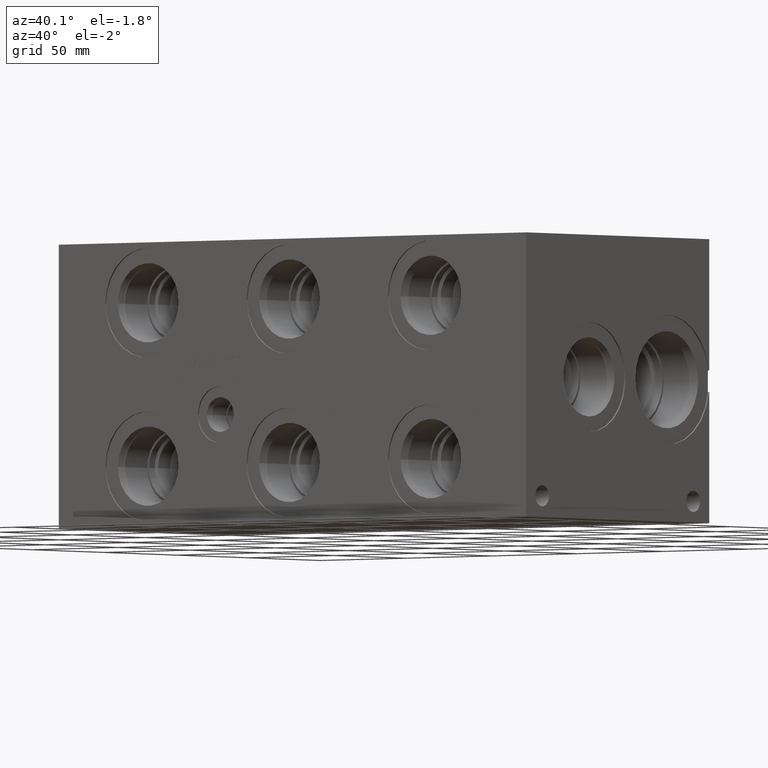
[diagram: clean part render]
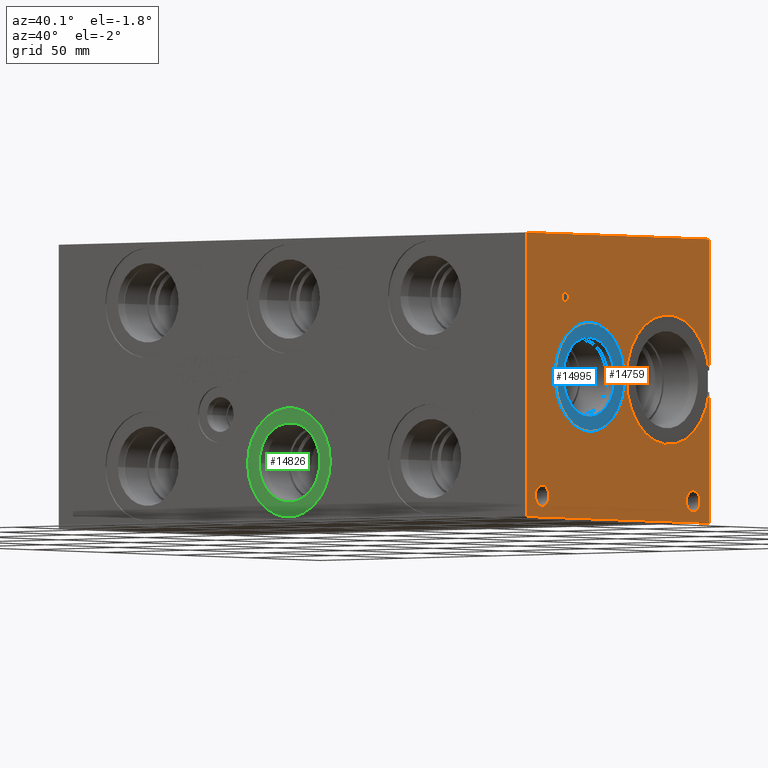
[diagram: same view with three faces highlighted in distinct colors, each labeled with its STEP entity id]
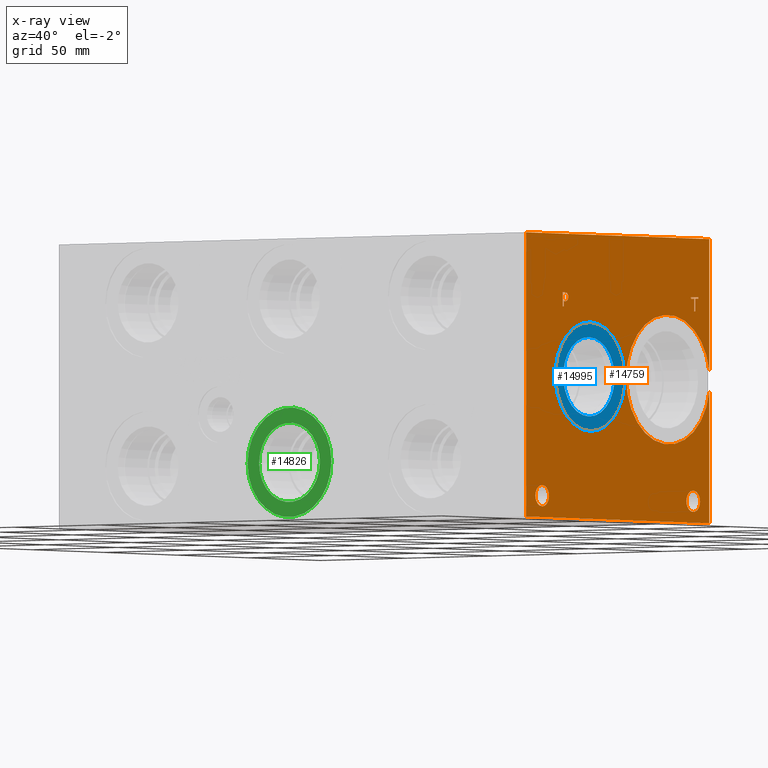
[diagram: x-ray of the same camera — body ghosted, the three highlighted faces saturated]
A machine part, auxiliary view with three faces highlighted in distinct colors.
The next image is the same camera in x-ray (body ghosted, the three faces saturated) — at least one of them is partly hidden behind the body in this view.
Their STEP definitions:

[orange] entity #14759 — the highlighted planar face has unit normal (1, 0, 0).
#432=CIRCLE('',#15385,28.9814);
#433=CIRCLE('',#15386,24.4856);
#434=CIRCLE('',#15387,24.4856);
#435=CIRCLE('',#15388,4.7625);
#436=CIRCLE('',#15389,4.7625);
#437=CIRCLE('',#15390,4.7625);
#438=CIRCLE('',#15391,4.7625);
#1204=B_SPLINE_CURVE_WITH_KNOTS('',2,(#24708,#24709,#24710,#24711),
 .UNSPECIFIED.,.F.,.F.,(3,1,3),(0.,1.,2.),.UNSPECIFIED.);
#1206=B_SPLINE_CURVE_WITH_KNOTS('',2,(#24729,#24730,#24731,#24732),
 .UNSPECIFIED.,.F.,.F.,(3,1,3),(0.,1.,2.),.UNSPECIFIED.);
#1208=B_SPLINE_CURVE_WITH_KNOTS('',2,(#24778,#24779,#24780,#24781),
 .UNSPECIFIED.,.F.,.F.,(3,1,3),(0.,1.,2.),.UNSPECIFIED.);
#1210=B_SPLINE_CURVE_WITH_KNOTS('',2,(#24796,#24797,#24798,#24799),
 .UNSPECIFIED.,.F.,.F.,(3,1,3),(0.,1.,2.),.UNSPECIFIED.);
#1269=FACE_BOUND('',#2700,.T.);
#1270=FACE_BOUND('',#2701,.T.);
#1271=FACE_BOUND('',#2702,.T.);
#1272=FACE_BOUND('',#2703,.T.);
#1273=FACE_BOUND('',#2704,.T.);
#1858=FACE_OUTER_BOUND('',#2699,.T.);
#2699=EDGE_LOOP('',(#11982,#11983,#11984,#11985,#11986,#11987));
#2700=EDGE_LOOP('',(#11988,#11989));
#2701=EDGE_LOOP('',(#11990,#11991));
#2702=EDGE_LOOP('',(#11992,#11993));
#2703=EDGE_LOOP('',(#11994,#11995,#11996,#11997,#11998,#11999,#12000,#12001));
#2704=EDGE_LOOP('',(#12002,#12003,#12004,#12005,#12006,#12007,#12008,#12009,
#12010));
#3074=LINE('',#19416,#4365);
#4062=LINE('',#24741,#5353);
#4065=LINE('',#24747,#5356);
#4068=LINE('',#24753,#5359);
#4071=LINE('',#24759,#5362);
#4074=LINE('',#24765,#5365);
#4078=LINE('',#24810,#5369);
#4079=LINE('',#24811,#5370);
#4080=LINE('',#24813,#5371);
#4081=LINE('',#24814,#5372);
#4082=LINE('',#24829,#5373);
#4083=LINE('',#24831,#5374);
#4084=LINE('',#24833,#5375);
#4085=LINE('',#24835,#5376);
#4086=LINE('',#24837,#5377);
#4087=LINE('',#24839,#5378);
#4088=LINE('',#24841,#5379);
#4089=LINE('',#24842,#5380);
#4365=VECTOR('',#16106,10.);
#5353=VECTOR('',#17744,10.);
#5356=VECTOR('',#17749,10.);
#5359=VECTOR('',#17754,10.);
#5362=VECTOR('',#17759,10.);
#5365=VECTOR('',#17764,10.);
#5369=VECTOR('',#17774,10.);
#5370=VECTOR('',#17775,10.);
#5371=VECTOR('',#17776,10.);
#5372=VECTOR('',#17777,10.);
#5373=VECTOR('',#17790,10.);
#5374=VECTOR('',#17791,10.);
#5375=VECTOR('',#17792,10.);
#5376=VECTOR('',#17793,10.);
#5377=VECTOR('',#17794,10.);
#5378=VECTOR('',#17795,10.);
#5379=VECTOR('',#17796,10.);
#5380=VECTOR('',#17797,10.);
#5645=VERTEX_POINT('',#19413);
#5646=VERTEX_POINT('',#19415);
#6580=VERTEX_POINT('',#24706);
#6581=VERTEX_POINT('',#24707);
#6584=VERTEX_POINT('',#24728);
#6586=VERTEX_POINT('',#24740);
#6588=VERTEX_POINT('',#24746);
#6590=VERTEX_POINT('',#24752);
#6592=VERTEX_POINT('',#24758);
#6594=VERTEX_POINT('',#24764);
#6596=VERTEX_POINT('',#24777);
#6598=VERTEX_POINT('',#24806);
#6599=VERTEX_POINT('',#24807);
#6600=VERTEX_POINT('',#24809);
#6601=VERTEX_POINT('',#24812);
#6602=VERTEX_POINT('',#24815);
#6603=VERTEX_POINT('',#24816);
#6604=VERTEX_POINT('',#24819);
#6605=VERTEX_POINT('',#24820);
#6606=VERTEX_POINT('',#24823);
#6607=VERTEX_POINT('',#24824);
#6608=VERTEX_POINT('',#24827);
#6609=VERTEX_POINT('',#24828);
#6610=VERTEX_POINT('',#24830);
#6611=VERTEX_POINT('',#24832);
#6612=VERTEX_POINT('',#24834);
#6613=VERTEX_POINT('',#24836);
#6614=VERTEX_POINT('',#24838);
#6615=VERTEX_POINT('',#24840);
#7096=EDGE_CURVE('',#5645,#5646,#3074,.T.);
#8482=EDGE_CURVE('',#6580,#6581,#1204,.T.);
#8486=EDGE_CURVE('',#6584,#6580,#1206,.T.);
#8489=EDGE_CURVE('',#6586,#6584,#4062,.T.);
#8492=EDGE_CURVE('',#6588,#6586,#4065,.T.);
#8495=EDGE_CURVE('',#6590,#6588,#4068,.T.);
#8498=EDGE_CURVE('',#6592,#6590,#4071,.T.);
#8501=EDGE_CURVE('',#6594,#6592,#4074,.T.);
#8504=EDGE_CURVE('',#6596,#6594,#1208,.T.);
#8507=EDGE_CURVE('',#6581,#6596,#1210,.T.);
#8509=EDGE_CURVE('',#6598,#6599,#432,.T.);
#8510=EDGE_CURVE('',#6599,#6600,#4078,.T.);
#8511=EDGE_CURVE('',#5646,#6600,#4079,.T.);
#8512=EDGE_CURVE('',#5645,#6601,#4080,.T.);
#8513=EDGE_CURVE('',#6601,#6598,#4081,.T.);
#8514=EDGE_CURVE('',#6602,#6603,#433,.T.);
#8515=EDGE_CURVE('',#6603,#6602,#434,.T.);
#8516=EDGE_CURVE('',#6604,#6605,#435,.T.);
#8517=EDGE_CURVE('',#6605,#6604,#436,.T.);
#8518=EDGE_CURVE('',#6606,#6607,#437,.T.);
#8519=EDGE_CURVE('',#6607,#6606,#438,.T.);
#8520=EDGE_CURVE('',#6608,#6609,#4082,.T.);
#8521=EDGE_CURVE('',#6609,#6610,#4083,.T.);
#8522=EDGE_CURVE('',#6610,#6611,#4084,.T.);
#8523=EDGE_CURVE('',#6611,#6612,#4085,.T.);
#8524=EDGE_CURVE('',#6612,#6613,#4086,.T.);
#8525=EDGE_CURVE('',#6613,#6614,#4087,.T.);
#8526=EDGE_CURVE('',#6614,#6615,#4088,.T.);
#8527=EDGE_CURVE('',#6615,#6608,#4089,.T.);
#11982=ORIENTED_EDGE('',*,*,#8509,.T.);
#11983=ORIENTED_EDGE('',*,*,#8510,.T.);
#11984=ORIENTED_EDGE('',*,*,#8511,.F.);
#11985=ORIENTED_EDGE('',*,*,#7096,.F.);
#11986=ORIENTED_EDGE('',*,*,#8512,.T.);
#11987=ORIENTED_EDGE('',*,*,#8513,.T.);
#11988=ORIENTED_EDGE('',*,*,#8514,.T.);
#11989=ORIENTED_EDGE('',*,*,#8515,.T.);
#11990=ORIENTED_EDGE('',*,*,#8516,.T.);
#11991=ORIENTED_EDGE('',*,*,#8517,.T.);
#11992=ORIENTED_EDGE('',*,*,#8518,.T.);
#11993=ORIENTED_EDGE('',*,*,#8519,.T.);
#11994=ORIENTED_EDGE('',*,*,#8520,.T.);
#11995=ORIENTED_EDGE('',*,*,#8521,.T.);
#11996=ORIENTED_EDGE('',*,*,#8522,.T.);
#11997=ORIENTED_EDGE('',*,*,#8523,.T.);
#11998=ORIENTED_EDGE('',*,*,#8524,.T.);
#11999=ORIENTED_EDGE('',*,*,#8525,.T.);
#12000=ORIENTED_EDGE('',*,*,#8526,.T.);
#12001=ORIENTED_EDGE('',*,*,#8527,.T.);
#12002=ORIENTED_EDGE('',*,*,#8482,.T.);
#12003=ORIENTED_EDGE('',*,*,#8507,.T.);
#12004=ORIENTED_EDGE('',*,*,#8504,.T.);
#12005=ORIENTED_EDGE('',*,*,#8501,.T.);
#12006=ORIENTED_EDGE('',*,*,#8498,.T.);
#12007=ORIENTED_EDGE('',*,*,#8495,.T.);
#12008=ORIENTED_EDGE('',*,*,#8492,.T.);
#12009=ORIENTED_EDGE('',*,*,#8489,.T.);
#12010=ORIENTED_EDGE('',*,*,#8486,.T.);
#13660=PLANE('',#15384);
#14759=ADVANCED_FACE('',(#1858,#1269,#1270,#1271,#1272,#1273),#13660,.T.);
#15384=AXIS2_PLACEMENT_3D('',#24805,#17770,#17771);
#15385=AXIS2_PLACEMENT_3D('',#24808,#17772,#17773);
#15386=AXIS2_PLACEMENT_3D('',#24817,#17778,#17779);
#15387=AXIS2_PLACEMENT_3D('',#24818,#17780,#17781);
#15388=AXIS2_PLACEMENT_3D('',#24821,#17782,#17783);
#15389=AXIS2_PLACEMENT_3D('',#24822,#17784,#17785);
#15390=AXIS2_PLACEMENT_3D('',#24825,#17786,#17787);
#15391=AXIS2_PLACEMENT_3D('',#24826,#17788,#17789);
#16106=DIRECTION('',(0.,0.,1.));
#17744=DIRECTION('',(0.,1.,0.));
#17749=DIRECTION('',(0.,0.,1.));
#17754=DIRECTION('',(0.,-1.,0.));
#17759=DIRECTION('',(0.,0.,-1.));
#17764=DIRECTION('',(0.,-1.,0.));
#17770=DIRECTION('center_axis',(1.,0.,0.));
#17771=DIRECTION('ref_axis',(0.,1.,0.));
#17772=DIRECTION('center_axis',(-1.,0.,0.));
#17773=DIRECTION('ref_axis',(0.,1.,0.));
#17774=DIRECTION('',(0.,0.,1.));
#17775=DIRECTION('',(0.,1.,0.));
#17776=DIRECTION('',(0.,1.,0.));
#17777=DIRECTION('',(0.,0.,1.));
#17778=DIRECTION('center_axis',(-1.,0.,0.));
#17779=DIRECTION('ref_axis',(0.,0.,-1.));
#17780=DIRECTION('center_axis',(-1.,0.,0.));
#17781=DIRECTION('ref_axis',(0.,0.,-1.));
#17782=DIRECTION('center_axis',(-1.,0.,0.));
#17783=DIRECTION('ref_axis',(0.,1.,0.));
#17784=DIRECTION('center_axis',(-1.,0.,0.));
#17785=DIRECTION('ref_axis',(0.,1.,0.));
#17786=DIRECTION('center_axis',(-1.,0.,0.));
#17787=DIRECTION('ref_axis',(0.,1.,0.));
#17788=DIRECTION('center_axis',(-1.,0.,0.));
#17789=DIRECTION('ref_axis',(0.,1.,0.));
#17790=DIRECTION('',(0.,-1.,0.));
#17791=DIRECTION('',(0.,0.,1.));
#17792=DIRECTION('',(0.,-1.,0.));
#17793=DIRECTION('',(0.,0.,1.));
#17794=DIRECTION('',(0.,1.,0.));
#17795=DIRECTION('',(0.,0.,-1.));
#17796=DIRECTION('',(0.,-1.,0.));
#17797=DIRECTION('',(0.,0.,-1.));
#19413=CARTESIAN_POINT('',(273.05,0.,0.));
#19415=CARTESIAN_POINT('',(273.05,0.,127.));
#19416=CARTESIAN_POINT('',(273.05,0.,0.));
#24706=CARTESIAN_POINT('',(273.05,28.5068172023594,100.410018143971));
#24707=CARTESIAN_POINT('',(273.05,29.263259654532,98.8919873726039));
#24708=CARTESIAN_POINT('Ctrl Pts',(273.05,28.5068172023594,100.410018143971));
#24709=CARTESIAN_POINT('Ctrl Pts',(273.05,28.8618820268486,100.168162393956));
#24710=CARTESIAN_POINT('Ctrl Pts',(273.05,29.263259654532,99.4220116758269));
#24711=CARTESIAN_POINT('Ctrl Pts',(273.05,29.263259654532,98.8919873726039));
#24728=CARTESIAN_POINT('',(273.05,26.8447021543883,100.806249904633));
#24729=CARTESIAN_POINT('Ctrl Pts',(273.05,26.8447021543883,100.806249904633));
#24730=CARTESIAN_POINT('Ctrl Pts',(273.05,27.4107475267624,100.806249904633));
#24731=CARTESIAN_POINT('Ctrl Pts',(273.05,28.203211048086,100.620998691856));
#24732=CARTESIAN_POINT('Ctrl Pts',(273.05,28.5068172023594,100.410018143971));
#24740=CARTESIAN_POINT('',(273.05,25.2494833776978,100.806249904633));
#24741=CARTESIAN_POINT('',(273.05,12.6247416888489,100.806249904633));
#24746=CARTESIAN_POINT('',(273.05,25.2494833776978,94.45625));
#24747=CARTESIAN_POINT('',(273.05,25.2494833776978,47.228125));
#24752=CARTESIAN_POINT('',(273.05,26.0934055692373,94.45625));
#24753=CARTESIAN_POINT('',(273.05,13.0467027846186,94.45625));
#24758=CARTESIAN_POINT('',(273.05,26.0934055692373,96.8233488299279));
#24759=CARTESIAN_POINT('',(273.05,26.0934055692373,48.4116744149639));
#24764=CARTESIAN_POINT('',(273.05,26.8086810852372,96.8233488299279));
#24765=CARTESIAN_POINT('',(273.05,13.4043405426186,96.8233488299279));
#24777=CARTESIAN_POINT('',(273.05,28.7075060162011,97.4820198086904));
#24778=CARTESIAN_POINT('Ctrl Pts',(273.05,28.7075060162011,97.4820198086904));
#24779=CARTESIAN_POINT('Ctrl Pts',(273.05,28.3781705268198,97.1578301863307));
#24780=CARTESIAN_POINT('Ctrl Pts',(273.05,27.4879355320861,96.8233488299279));
#24781=CARTESIAN_POINT('Ctrl Pts',(273.05,26.8086810852372,96.8233488299279));
#24796=CARTESIAN_POINT('Ctrl Pts',(273.05,29.263259654532,98.8919873726039));
#24797=CARTESIAN_POINT('Ctrl Pts',(273.05,29.263259654532,98.4803180108774));
#24798=CARTESIAN_POINT('Ctrl Pts',(273.05,28.9699452343018,97.7393131597695));
#24799=CARTESIAN_POINT('Ctrl Pts',(273.05,28.7075060162011,97.4820198086904));
#24805=CARTESIAN_POINT('Origin',(273.05,0.,0.));
#24806=CARTESIAN_POINT('',(273.05,127.,58.6635838723286));
#24807=CARTESIAN_POINT('',(273.05,127.,68.3364161276714));
#24808=CARTESIAN_POINT('Origin',(273.05,98.425,63.5));
#24809=CARTESIAN_POINT('',(273.05,127.,127.));
#24810=CARTESIAN_POINT('',(273.05,127.,0.));
#24811=CARTESIAN_POINT('',(273.05,0.,127.));
#24812=CARTESIAN_POINT('',(273.05,127.,0.));
#24813=CARTESIAN_POINT('',(273.05,0.,0.));
#24814=CARTESIAN_POINT('',(273.05,127.,0.));
#24815=CARTESIAN_POINT('',(273.05,44.45,39.0144));
#24816=CARTESIAN_POINT('',(273.05,44.45,87.9856));
#24817=CARTESIAN_POINT('Origin',(273.05,44.45,63.5));
#24818=CARTESIAN_POINT('Origin',(273.05,44.45,63.5));
#24819=CARTESIAN_POINT('',(273.05,120.6627,9.525));
#24820=CARTESIAN_POINT('',(273.05,111.1377,9.525));
#24821=CARTESIAN_POINT('Origin',(273.05,115.9002,9.525));
#24822=CARTESIAN_POINT('Origin',(273.05,115.9002,9.525));
#24823=CARTESIAN_POINT('',(273.05,15.8877,9.525));
#24824=CARTESIAN_POINT('',(273.05,6.3627,9.525));
#24825=CARTESIAN_POINT('Origin',(273.05,11.1252,9.525));
#24826=CARTESIAN_POINT('Origin',(273.05,11.1252,9.525));
#24827=CARTESIAN_POINT('',(273.05,117.269165271453,94.45625));
#24828=CARTESIAN_POINT('',(273.05,116.425243079913,94.45625));
#24829=CARTESIAN_POINT('',(273.05,58.6345826357265,94.45625));
#24830=CARTESIAN_POINT('',(273.05,116.425243079913,100.054953319482));
#24831=CARTESIAN_POINT('',(273.05,116.425243079913,47.228125));
#24832=CARTESIAN_POINT('',(273.05,114.294854132978,100.054953319482));
#24833=CARTESIAN_POINT('',(273.05,58.2126215399567,100.054953319482));
#24834=CARTESIAN_POINT('',(273.05,114.294854132978,100.806249904633));
#24835=CARTESIAN_POINT('',(273.05,114.294854132978,50.0274766597408));
#24836=CARTESIAN_POINT('',(273.05,119.399554218388,100.806249904633));
#24837=CARTESIAN_POINT('',(273.05,57.1474270664892,100.806249904633));
#24838=CARTESIAN_POINT('',(273.05,119.399554218388,100.054953319482));
#24839=CARTESIAN_POINT('',(273.05,119.399554218388,50.4031249523163));
#24840=CARTESIAN_POINT('',(273.05,117.269165271453,100.054953319482));
#24841=CARTESIAN_POINT('',(273.05,59.699777109194,100.054953319482));
#24842=CARTESIAN_POINT('',(273.05,117.269165271453,50.0274766597408));

[blue] entity #14995 — the highlighted planar face has unit normal (-1, 0, 0).
#785=CIRCLE('',#15973,24.4856);
#786=CIRCLE('',#15974,24.4856);
#787=CIRCLE('',#15976,17.7546);
#788=CIRCLE('',#15977,17.7546);
#1309=FACE_BOUND('',#2976,.T.);
#2094=FACE_OUTER_BOUND('',#2975,.T.);
#2975=EDGE_LOOP('',(#13117,#13118));
#2976=EDGE_LOOP('',(#13119,#13120));
#7019=VERTEX_POINT('',#26040);
#7020=VERTEX_POINT('',#26042);
#7021=VERTEX_POINT('',#26046);
#7022=VERTEX_POINT('',#26047);
#9088=EDGE_CURVE('',#7019,#7020,#785,.T.);
#9089=EDGE_CURVE('',#7020,#7019,#786,.T.);
#9090=EDGE_CURVE('',#7021,#7022,#787,.T.);
#9091=EDGE_CURVE('',#7022,#7021,#788,.T.);
#13117=ORIENTED_EDGE('',*,*,#9089,.F.);
#13118=ORIENTED_EDGE('',*,*,#9088,.F.);
#13119=ORIENTED_EDGE('',*,*,#9090,.T.);
#13120=ORIENTED_EDGE('',*,*,#9091,.T.);
#13714=PLANE('',#15975);
#14995=ADVANCED_FACE('',(#2094,#1309),#13714,.F.);
#15973=AXIS2_PLACEMENT_3D('',#26043,#19174,#19175);
#15974=AXIS2_PLACEMENT_3D('',#26044,#19176,#19177);
#15975=AXIS2_PLACEMENT_3D('',#26045,#19178,#19179);
#15976=AXIS2_PLACEMENT_3D('',#26048,#19180,#19181);
#15977=AXIS2_PLACEMENT_3D('',#26049,#19182,#19183);
#19174=DIRECTION('center_axis',(-1.,0.,0.));
#19175=DIRECTION('ref_axis',(0.,0.,1.));
#19176=DIRECTION('center_axis',(-1.,0.,0.));
#19177=DIRECTION('ref_axis',(0.,0.,1.));
#19178=DIRECTION('center_axis',(-1.,0.,0.));
#19179=DIRECTION('ref_axis',(0.,0.,1.));
#19180=DIRECTION('center_axis',(-1.,0.,0.));
#19181=DIRECTION('ref_axis',(0.,0.,1.));
#19182=DIRECTION('center_axis',(-1.,0.,0.));
#19183=DIRECTION('ref_axis',(0.,0.,1.));
#26040=CARTESIAN_POINT('',(272.2626,44.45,87.9856));
#26042=CARTESIAN_POINT('',(272.2626,44.45,39.0144));
#26043=CARTESIAN_POINT('Origin',(272.2626,44.45,63.5));
#26044=CARTESIAN_POINT('Origin',(272.2626,44.45,63.5));
#26045=CARTESIAN_POINT('Origin',(272.2626,44.45,45.7454));
#26046=CARTESIAN_POINT('',(272.2626,44.45,45.7454));
#26047=CARTESIAN_POINT('',(272.2626,44.45,81.2546));
#26048=CARTESIAN_POINT('Origin',(272.2626,44.45,63.5));
#26049=CARTESIAN_POINT('Origin',(272.2626,44.45,63.5));

[green] entity #14826 — the highlighted planar face has unit normal (0, -1, 0).
#518=CIRCLE('',#15538,24.4856);
#519=CIRCLE('',#15539,24.4856);
#520=CIRCLE('',#15540,17.7546);
#1280=FACE_BOUND('',#2778,.T.);
#1925=FACE_OUTER_BOUND('',#2777,.T.);
#2777=EDGE_LOOP('',(#12326,#12327));
#2778=EDGE_LOOP('',(#12328));
#6716=VERTEX_POINT('',#25163);
#6717=VERTEX_POINT('',#25164);
#6718=VERTEX_POINT('',#25167);
#8681=EDGE_CURVE('',#6716,#6717,#518,.T.);
#8682=EDGE_CURVE('',#6717,#6716,#519,.T.);
#8683=EDGE_CURVE('',#6718,#6718,#520,.T.);
#12326=ORIENTED_EDGE('',*,*,#8681,.T.);
#12327=ORIENTED_EDGE('',*,*,#8682,.T.);
#12328=ORIENTED_EDGE('',*,*,#8683,.F.);
#13685=PLANE('',#15537);
#14826=ADVANCED_FACE('',(#1925,#1280),#13685,.T.);
#15537=AXIS2_PLACEMENT_3D('',#25162,#18162,#18163);
#15538=AXIS2_PLACEMENT_3D('',#25165,#18164,#18165);
#15539=AXIS2_PLACEMENT_3D('',#25166,#18166,#18167);
#15540=AXIS2_PLACEMENT_3D('',#25168,#18168,#18169);
#18162=DIRECTION('center_axis',(0.,-1.,0.));
#18163=DIRECTION('ref_axis',(1.,0.,0.));
#18164=DIRECTION('center_axis',(0.,-1.,0.));
#18165=DIRECTION('ref_axis',(1.,0.,0.));
#18166=DIRECTION('center_axis',(0.,-1.,0.));
#18167=DIRECTION('ref_axis',(1.,0.,0.));
#18168=DIRECTION('center_axis',(0.,-1.,0.));
#18169=DIRECTION('ref_axis',(1.,0.,0.));
#25162=CARTESIAN_POINT('Origin',(134.1374,0.7874,26.9875));
#25163=CARTESIAN_POINT('',(158.623,0.7874,26.9875));
#25164=CARTESIAN_POINT('',(109.6518,0.7874,26.9875));
#25165=CARTESIAN_POINT('Origin',(134.1374,0.7874,26.9875));
#25166=CARTESIAN_POINT('Origin',(134.1374,0.7874,26.9875));
#25167=CARTESIAN_POINT('',(116.3828,0.7874,26.9875));
#25168=CARTESIAN_POINT('Origin',(134.1374,0.7874,26.9875));